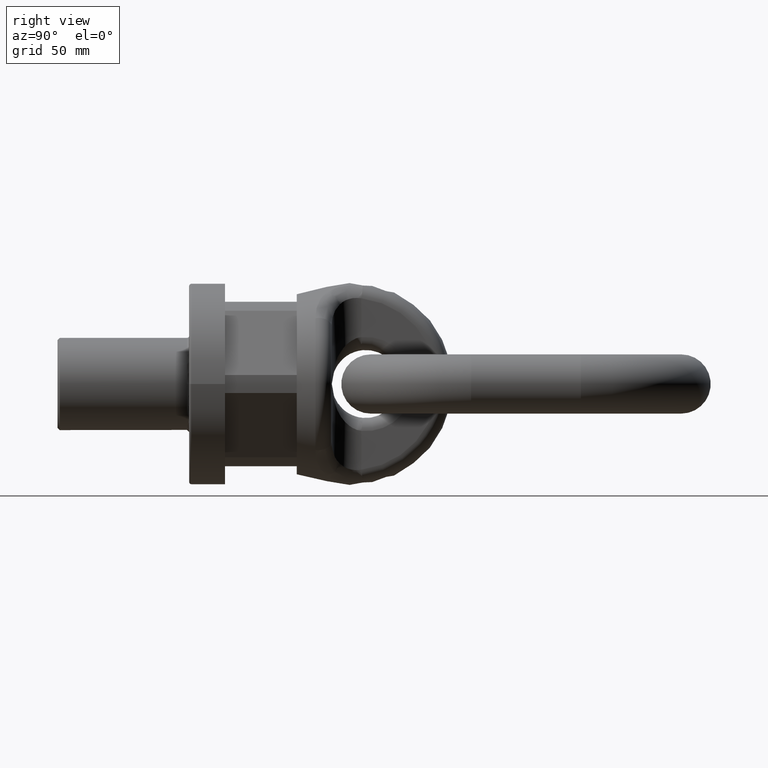
[diagram: clean part render]
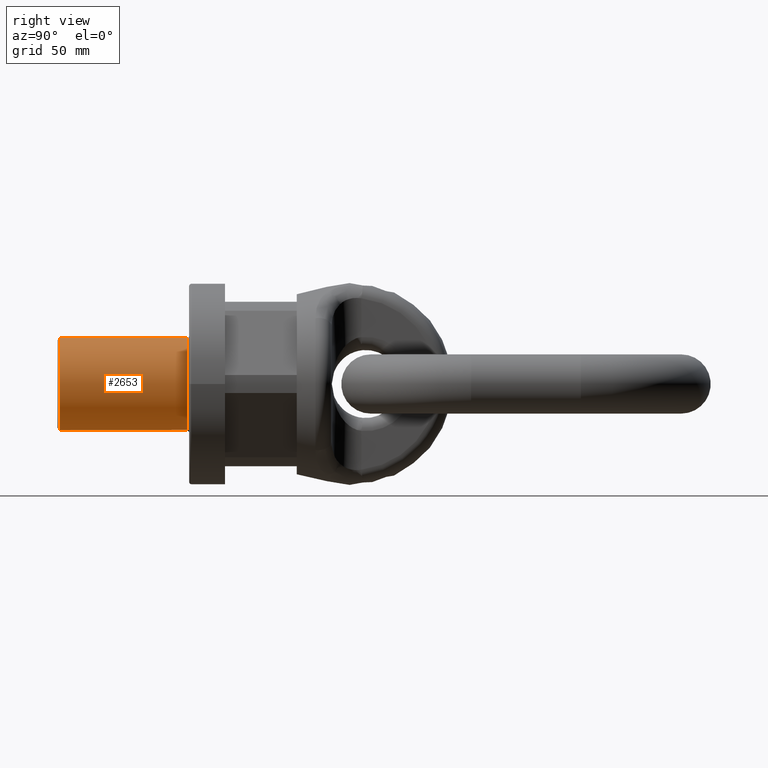
[diagram: same view with one face highlighted and labeled with its STEP entity id]
A machine part, right view. The second image highlights one B-rep face of the part: STEP entity #2653.
In plain terms, the highlighted cylindrical surface (bore or boss wall) has radius 21 mm, axis along (0, 1, 0).
Its self-contained STEP definition (entity closure, byte-faithful):
#2019=CYLINDRICAL_SURFACE('',#5630,21.);
#2653=ADVANCED_FACE('',(#2991,#2992),#2019,.T.);
#2991=FACE_BOUND('',#3076,.T.);
#2992=FACE_BOUND('',#3077,.T.);
#3076=EDGE_LOOP('',(#3420));
#3077=EDGE_LOOP('',(#3421));
#3420=ORIENTED_EDGE('',*,*,#4973,.T.);
#3421=ORIENTED_EDGE('',*,*,#4974,.T.);
#4563=VERTEX_POINT('',#6647);
#4564=VERTEX_POINT('',#6649);
#4973=EDGE_CURVE('',#4563,#4563,#5545,.T.);
#4974=EDGE_CURVE('',#4564,#4564,#5546,.T.);
#5545=CIRCLE('',#5628,21.);
#5546=CIRCLE('',#5629,21.);
#5628=AXIS2_PLACEMENT_3D('',#6646,#5891,#5892);
#5629=AXIS2_PLACEMENT_3D('',#6648,#5893,#5894);
#5630=AXIS2_PLACEMENT_3D('',#6650,#5895,#5896);
#5891=DIRECTION('',(4.81111242522174E-17,-1.,0.));
#5892=DIRECTION('',(1.,5.16286748802621E-17,0.));
#5893=DIRECTION('',(0.,1.,0.));
#5894=DIRECTION('',(0.,0.,1.));
#5895=DIRECTION('',(0.,1.,0.));
#5896=DIRECTION('',(0.,0.,1.));
#6646=CARTESIAN_POINT('',(0.,-1.,0.));
#6647=CARTESIAN_POINT('',(21.,-1.,0.));
#6648=CARTESIAN_POINT('',(0.,-59.,0.));
#6649=CARTESIAN_POINT('',(0.,-59.,21.));
#6650=CARTESIAN_POINT('',(0.,-60.,0.));